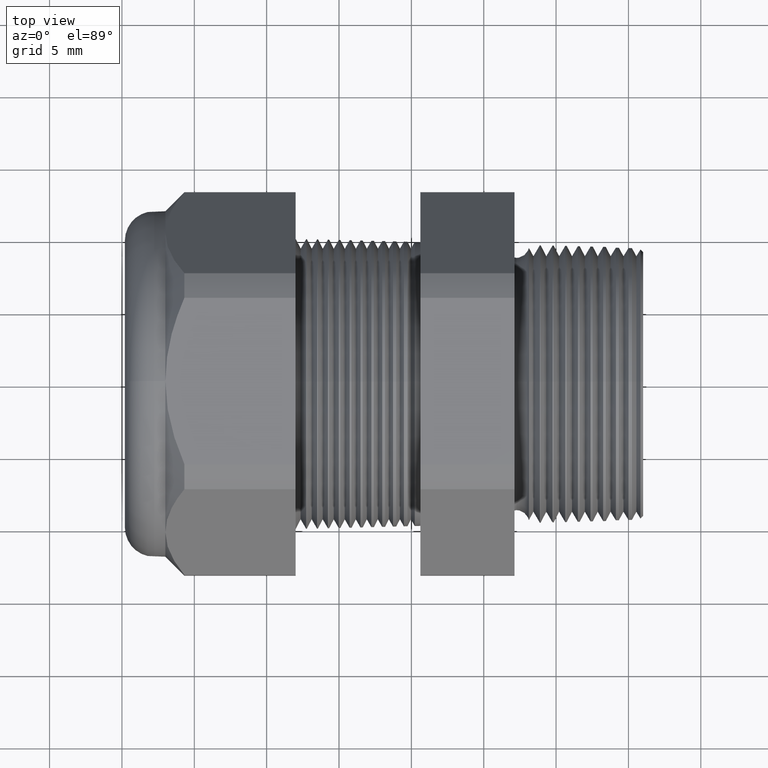
[diagram: clean part render]
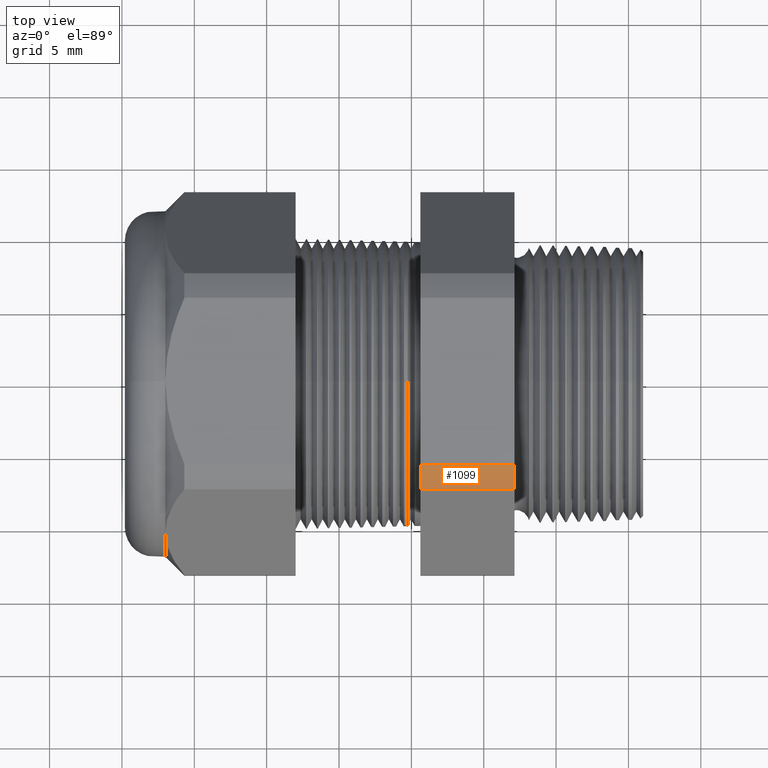
[diagram: same view with one face highlighted and labeled with its STEP entity id]
A machine part, top view. The second image highlights one B-rep face of the part: STEP entity #1099.
In plain terms, the highlighted cylindrical surface (partial cylindrical patch) has radius 13.2512 mm, axis along (-1, 0, 0).
Its self-contained STEP definition (entity closure, byte-faithful):
#1019 = VERTEX_POINT ( 'NONE', #3462 ) ;
#1020 = VERTEX_POINT ( 'NONE', #3461 ) ;
#1078 = EDGE_CURVE ( 'NONE', #1019, #1020, #3511, .T. ) ;
#1099 = ADVANCED_FACE ( 'NONE', ( #3595 ), #3593, .T. ) ;
#1100 = ORIENTED_EDGE ( 'NONE', *, *, #1119, .T. ) ;
#1101 = ORIENTED_EDGE ( 'NONE', *, *, #1078, .F. ) ;
#1102 = ORIENTED_EDGE ( 'NONE', *, *, #1103, .F. ) ;
#1103 = EDGE_CURVE ( 'NONE', #4794, #1019, #3589, .T. ) ;
#1104 = ORIENTED_EDGE ( 'NONE', *, *, #4838, .F. ) ;
#1119 = EDGE_CURVE ( 'NONE', #4812, #1020, #3633, .T. ) ;
#1120 = EDGE_LOOP ( 'NONE', ( #1100, #1101, #1102, #1104 ) ) ;
#3461 = CARTESIAN_POINT ( 'NONE',  ( -0.5659055118110235500, -0.2264307620443835300, 0.4699999999999997000 ) ) ;
#3462 = CARTESIAN_POINT ( 'NONE',  ( -0.5659055118110235500, -0.2938165587564945900, 0.4310947921287050500 ) ) ;
#3508 = DIRECTION ( 'NONE',  ( -1.000000000000000000, 0.0000000000000000000, 0.0000000000000000000 ) ) ;
#3509 = CARTESIAN_POINT ( 'NONE',  ( -0.5659055118110235500, 0.0000000000000000000, 0.0000000000000000000 ) ) ;
#3510 = AXIS2_PLACEMENT_3D ( 'NONE', #3509, #3508, #3569 ) ;
#3511 = CIRCLE ( 'NONE', #3510, 0.5217000000000000500 ) ;
#3569 = DIRECTION ( 'NONE',  ( 0.0000000000000000000, 0.0000000000000000000, 1.000000000000000000 ) ) ;
#3586 = DIRECTION ( 'NONE',  ( -1.000000000000000000, 0.0000000000000000000, 0.0000000000000000000 ) ) ;
#3587 = VECTOR ( 'NONE', #3586, 39.37007874015748100 ) ;
#3588 = CARTESIAN_POINT ( 'NONE',  ( 0.03999999999999984800, -0.2938165587564945900, 0.4310947921287050500 ) ) ;
#3589 = LINE ( 'NONE', #3588, #3587 ) ;
#3590 = DIRECTION ( 'NONE',  ( 0.0000000000000000000, 0.0000000000000000000, 1.000000000000000000 ) ) ;
#3591 = DIRECTION ( 'NONE',  ( -1.000000000000000000, 0.0000000000000000000, 0.0000000000000000000 ) ) ;
#3592 = AXIS2_PLACEMENT_3D ( 'NONE', #3594, #3591, #3590 ) ;
#3593 = CYLINDRICAL_SURFACE ( 'NONE', #3592, 0.5217000000000000500 ) ;
#3594 = CARTESIAN_POINT ( 'NONE',  ( 0.03999999999999984800, 0.0000000000000000000, 0.0000000000000000000 ) ) ;
#3595 = FACE_OUTER_BOUND ( 'NONE', #1120, .T. ) ;
#3630 = DIRECTION ( 'NONE',  ( -1.000000000000000000, 0.0000000000000000000, 0.0000000000000000000 ) ) ;
#3631 = VECTOR ( 'NONE', #3630, 39.37007874015748100 ) ;
#3632 = CARTESIAN_POINT ( 'NONE',  ( 0.03999999999999984800, -0.2264307620443835300, 0.4699999999999997000 ) ) ;
#3633 = LINE ( 'NONE', #3632, #3631 ) ;
#4426 = CARTESIAN_POINT ( 'NONE',  ( -0.3100000000000000000, -0.2938165587564945900, 0.4310947921287050500 ) ) ;
#4463 = CARTESIAN_POINT ( 'NONE',  ( -0.3100000000000000000, -0.2264307620443835300, 0.4699999999999997000 ) ) ;
#4532 = DIRECTION ( 'NONE',  ( 0.0000000000000000000, 0.0000000000000000000, -1.000000000000000000 ) ) ;
#4533 = DIRECTION ( 'NONE',  ( 1.000000000000000000, 0.0000000000000000000, 0.0000000000000000000 ) ) ;
#4534 = CARTESIAN_POINT ( 'NONE',  ( -0.3100000000000000000, 0.0000000000000000000, 0.0000000000000000000 ) ) ;
#4535 = AXIS2_PLACEMENT_3D ( 'NONE', #4534, #4533, #4532 ) ;
#4536 = CIRCLE ( 'NONE', #4535, 0.5217000000000000500 ) ;
#4794 = VERTEX_POINT ( 'NONE', #4426 ) ;
#4812 = VERTEX_POINT ( 'NONE', #4463 ) ;
#4838 = EDGE_CURVE ( 'NONE', #4812, #4794, #4536, .T. ) ;